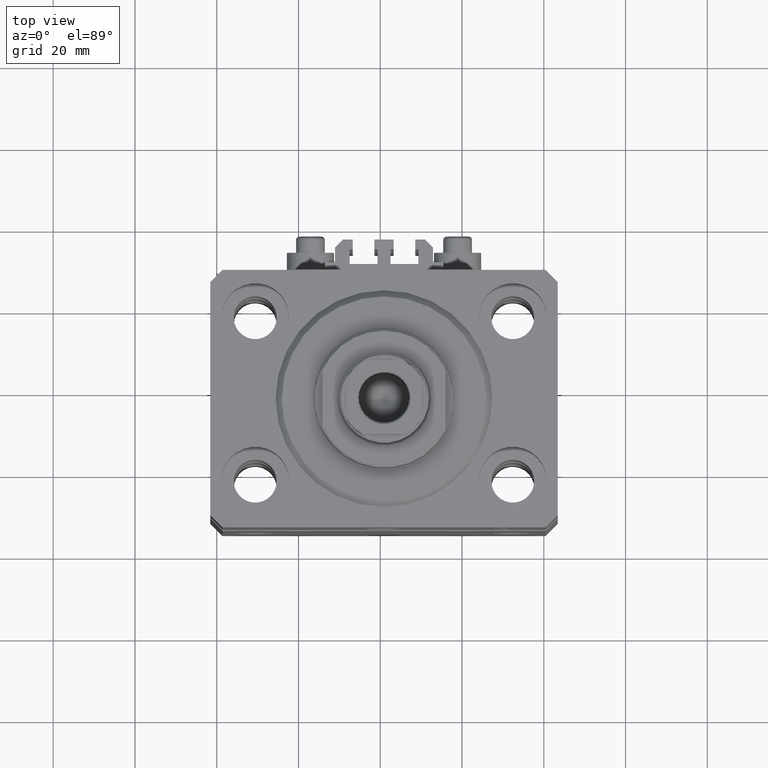
[diagram: clean part render]
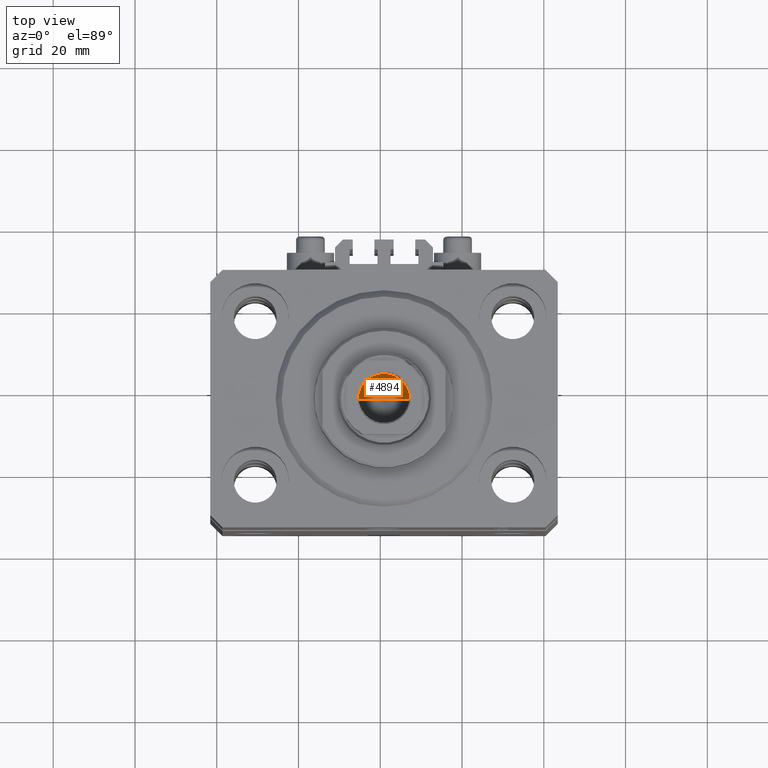
[diagram: same view with one face highlighted and labeled with its STEP entity id]
A machine part, top view. The second image highlights one B-rep face of the part: STEP entity #4894.
In plain terms, the highlighted conical surface has half-angle 59 deg.
Its self-contained STEP definition (entity closure, byte-faithful):
#117 = CIRCLE ( 'NONE', #10169, 6.249999999999993783 ) ;
#1389 = ORIENTED_EDGE ( 'NONE', *, *, #19142, .T. ) ;
#2461 = ORIENTED_EDGE ( 'NONE', *, *, #18814, .T. ) ;
#4894 = ADVANCED_FACE ( 'NONE', ( #13721 ), #47895, .F. ) ;
#6422 = DIRECTION ( 'NONE',  ( 1.000000000000000000, 0.000000000000000000, 0.000000000000000000 ) ) ;
#10169 = AXIS2_PLACEMENT_3D ( 'NONE', #14218, #29053, #43885 ) ;
#13721 = FACE_OUTER_BOUND ( 'NONE', #38949, .T. ) ;
#14064 = VECTOR ( 'NONE', #41032, 1000.000000000000000 ) ;
#14218 = CARTESIAN_POINT ( 'NONE',  ( 0.000000000000000000, 0.000000000000000000, 103.5999999999999943 ) ) ;
#17963 = LINE ( 'NONE', #47405, #31076 ) ;
#18814 = EDGE_CURVE ( 'NONE', #41103, #19945, #41279, .T. ) ;
#19142 = EDGE_CURVE ( 'NONE', #19945, #31132, #117, .T. ) ;
#19945 = VERTEX_POINT ( 'NONE', #22364 ) ;
#22090 = DIRECTION ( 'NONE',  ( -0.8571673007021115565, 1.049727191138617710E-16, 0.5150380749100554878 ) ) ;
#22364 = CARTESIAN_POINT ( 'NONE',  ( 6.249999999999993783, 0.000000000000000000, 103.5999999999999943 ) ) ;
#22760 = CARTESIAN_POINT ( 'NONE',  ( -6.249999999999993783, 7.654042494670949718E-16, 103.5999999999999943 ) ) ;
#29053 = DIRECTION ( 'NONE',  ( -0.000000000000000000, -0.000000000000000000, 1.000000000000000000 ) ) ;
#31076 = VECTOR ( 'NONE', #22090, 1000.000000000000000 ) ;
#31132 = VERTEX_POINT ( 'NONE', #22760 ) ;
#32202 = DIRECTION ( 'NONE',  ( -0.000000000000000000, -0.000000000000000000, 1.000000000000000000 ) ) ;
#38949 = EDGE_LOOP ( 'NONE', ( #40404, #2461, #1389 ) ) ;
#39117 = CARTESIAN_POINT ( 'NONE',  ( -7.434177670704979810E-15, 0.000000000000000000, 99.84462113107774428 ) ) ;
#39503 = CARTESIAN_POINT ( 'NONE',  ( 0.000000000000000000, 0.000000000000000000, 103.5999999999999943 ) ) ;
#40404 = ORIENTED_EDGE ( 'NONE', *, *, #41762, .F. ) ;
#41032 = DIRECTION ( 'NONE',  ( 0.8571673007021115565, 0.000000000000000000, 0.5150380749100554878 ) ) ;
#41103 = VERTEX_POINT ( 'NONE', #39117 ) ;
#41279 = LINE ( 'NONE', #45407, #14064 ) ;
#41762 = EDGE_CURVE ( 'NONE', #41103, #31132, #17963, .T. ) ;
#43885 = DIRECTION ( 'NONE',  ( 1.000000000000000000, 0.000000000000000000, 0.000000000000000000 ) ) ;
#45407 = CARTESIAN_POINT ( 'NONE',  ( 6.249999999999993783, 0.000000000000000000, 103.5999999999999943 ) ) ;
#47405 = CARTESIAN_POINT ( 'NONE',  ( -6.249999999999993783, 7.654042494670949718E-16, 103.5999999999999943 ) ) ;
#47855 = AXIS2_PLACEMENT_3D ( 'NONE', #39503, #32202, #6422 ) ;
#47895 = CONICAL_SURFACE ( 'NONE', #47855, 6.249999999999993783, 1.029744258676652979 ) ;